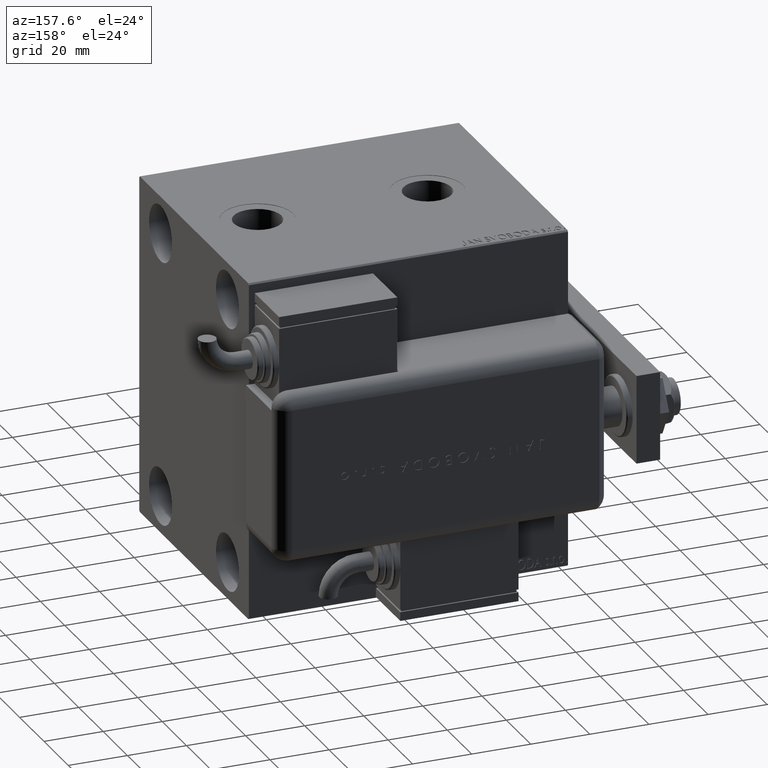
[diagram: clean part render]
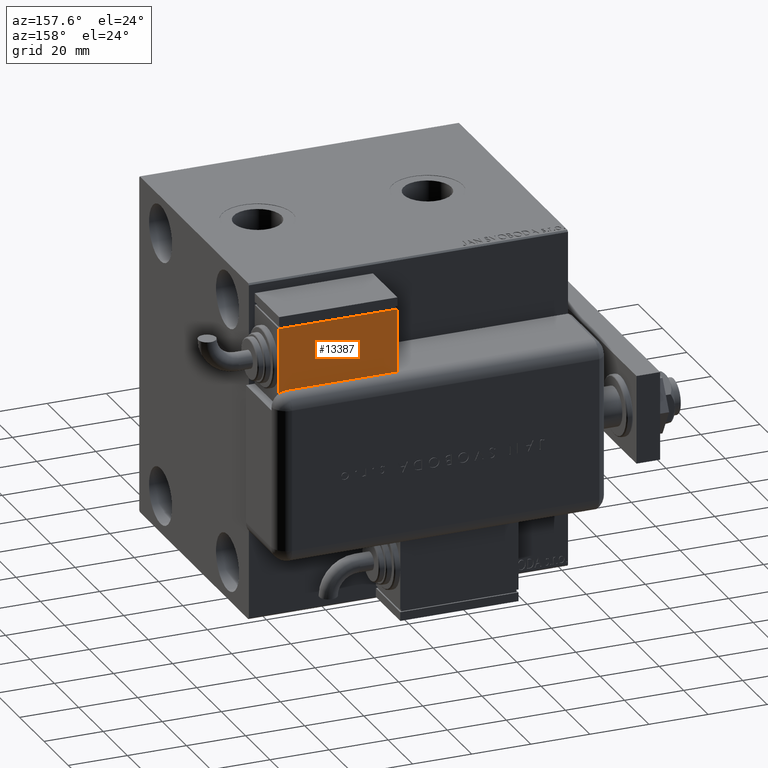
[diagram: same view with one face highlighted and labeled with its STEP entity id]
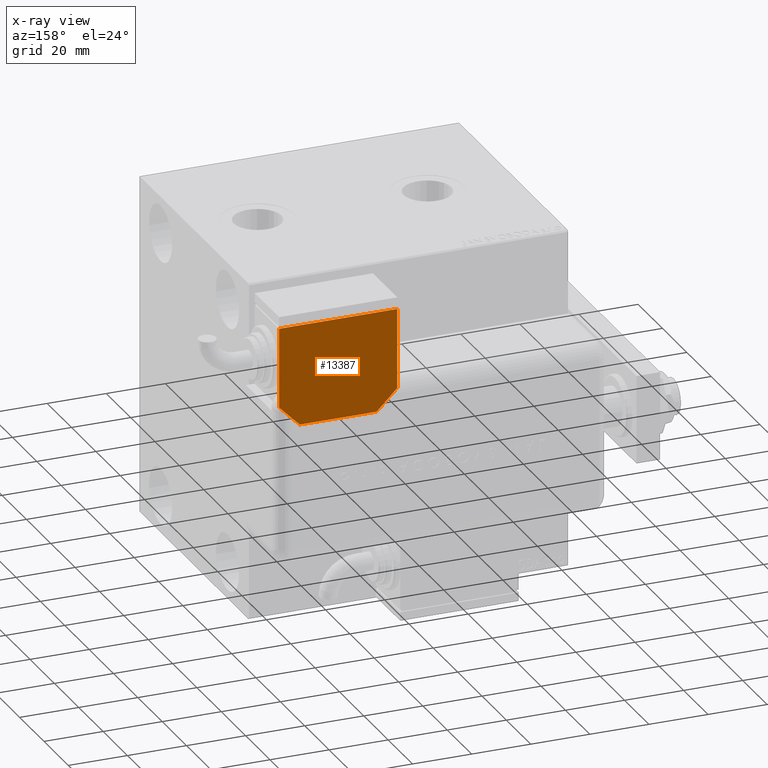
[diagram: x-ray of the same camera — body ghosted, the highlighted face saturated]
A machine part, auxiliary view. The second image highlights one B-rep face of the part: STEP entity #13387.
The next image is the same camera in x-ray: the body ghosted, the highlighted face saturated — about 0% of this face is hidden behind the body in this view.
In plain terms, the highlighted planar face has unit normal (0, -1, 0).
Its self-contained STEP definition (entity closure, byte-faithful):
#654 = DIRECTION ( 'NONE',  ( -1.284980352575421081E-16, -1.000000000000000000, -0.000000000000000000 ) ) ;
#937 = CARTESIAN_POINT ( 'NONE',  ( 20.00000000000005329, -13.49999999999996092, -10.00000000000000000 ) ) ;
#1556 = EDGE_CURVE ( 'NONE', #56026, #47607, #45192, .T. ) ;
#2547 = EDGE_LOOP ( 'NONE', ( #30021, #49237, #13089, #50019, #32039, #53984, #19502 ) ) ;
#4578 = DIRECTION ( 'NONE',  ( 1.284980352575412699E-16, 1.000000000000000000, 0.000000000000000000 ) ) ;
#7204 = DIRECTION ( 'NONE',  ( -0.7071067811865479058, 0.7071067811865470176, -0.000000000000000000 ) ) ;
#7552 = CARTESIAN_POINT ( 'NONE',  ( 0.000000000000000000, 0.000000000000000000, -10.00000000000000000 ) ) ;
#8514 = DIRECTION ( 'NONE',  ( 1.000000000000000000, 0.000000000000000000, 0.000000000000000000 ) ) ;
#9075 = VECTOR ( 'NONE', #7204, 1000.000000000000114 ) ;
#9314 = EDGE_CURVE ( 'NONE', #47607, #26504, #13357, .T. ) ;
#10399 = VERTEX_POINT ( 'NONE', #29045 ) ;
#11441 = CARTESIAN_POINT ( 'NONE',  ( 9.999999999999984013, 23.50000000000009592, -10.00000000000000000 ) ) ;
#11552 = DIRECTION ( 'NONE',  ( 1.000000000000000000, 0.000000000000000000, 0.000000000000000000 ) ) ;
#11794 = VECTOR ( 'NONE', #31265, 1000.000000000000000 ) ;
#13089 = ORIENTED_EDGE ( 'NONE', *, *, #42287, .F. ) ;
#13357 = LINE ( 'NONE', #32456, #11794 ) ;
#13387 = ADVANCED_FACE ( 'NONE', ( #36011 ), #58702, .F. ) ;
#13481 = VECTOR ( 'NONE', #4578, 1000.000000000000000 ) ;
#13958 = CARTESIAN_POINT ( 'NONE',  ( -19.99999999999993960, 13.49999999999986500, -10.00000000000000000 ) ) ;
#14555 = LINE ( 'NONE', #41053, #38911 ) ;
#15872 = CARTESIAN_POINT ( 'NONE',  ( 20.00000000000005329, -13.49999999999996092, -10.00000000000000000 ) ) ;
#19009 = VERTEX_POINT ( 'NONE', #15872 ) ;
#19502 = ORIENTED_EDGE ( 'NONE', *, *, #9314, .F. ) ;
#20467 = VECTOR ( 'NONE', #8514, 1000.000000000000000 ) ;
#23106 = CARTESIAN_POINT ( 'NONE',  ( 12.99999999999999112, 20.50000000000009592, -10.00000000000000000 ) ) ;
#23934 = LINE ( 'NONE', #937, #13481 ) ;
#24989 = VECTOR ( 'NONE', #11552, 1000.000000000000000 ) ;
#25842 = CARTESIAN_POINT ( 'NONE',  ( -19.99999999999993960, 13.49999999999986500, -10.00000000000000000 ) ) ;
#26504 = VERTEX_POINT ( 'NONE', #35419 ) ;
#27013 = DIRECTION ( 'NONE',  ( -0.7071067811865356934, -0.7071067811865593411, -0.000000000000000000 ) ) ;
#28814 = AXIS2_PLACEMENT_3D ( 'NONE', #7552, #30884, #53579 ) ;
#29045 = CARTESIAN_POINT ( 'NONE',  ( -19.99999999999994316, -13.49999999999996092, -10.00000000000000000 ) ) ;
#29928 = LINE ( 'NONE', #11441, #9075 ) ;
#30021 = ORIENTED_EDGE ( 'NONE', *, *, #1556, .F. ) ;
#30550 = VERTEX_POINT ( 'NONE', #23106 ) ;
#30884 = DIRECTION ( 'NONE',  ( 0.000000000000000000, 0.000000000000000000, 1.000000000000000000 ) ) ;
#31156 = LINE ( 'NONE', #45674, #24989 ) ;
#31265 = DIRECTION ( 'NONE',  ( -1.284980352575421081E-16, -1.000000000000000000, -0.000000000000000000 ) ) ;
#32039 = ORIENTED_EDGE ( 'NONE', *, *, #56389, .F. ) ;
#32456 = CARTESIAN_POINT ( 'NONE',  ( -19.99999999999994316, -13.49999999999996092, -10.00000000000000000 ) ) ;
#32843 = EDGE_CURVE ( 'NONE', #19009, #42015, #23934, .T. ) ;
#35419 = CARTESIAN_POINT ( 'NONE',  ( -19.99999999999993960, 2.569960705150834076E-15, -9.999999999999996447 ) ) ;
#36011 = FACE_OUTER_BOUND ( 'NONE', #2547, .T. ) ;
#36089 = CARTESIAN_POINT ( 'NONE',  ( 0.000000000000000000, 20.50000000000009592, -10.00000000000000000 ) ) ;
#37868 = EDGE_CURVE ( 'NONE', #56026, #30550, #54816, .T. ) ;
#38911 = VECTOR ( 'NONE', #654, 1000.000000000000000 ) ;
#39510 = EDGE_CURVE ( 'NONE', #26504, #10399, #14555, .T. ) ;
#41053 = CARTESIAN_POINT ( 'NONE',  ( -19.99999999999994316, -13.49999999999996092, -10.00000000000000000 ) ) ;
#42015 = VERTEX_POINT ( 'NONE', #45786 ) ;
#42287 = EDGE_CURVE ( 'NONE', #42015, #30550, #29928, .T. ) ;
#45192 = LINE ( 'NONE', #25842, #50817 ) ;
#45674 = CARTESIAN_POINT ( 'NONE',  ( -19.99999999999994316, -13.49999999999996092, -10.00000000000000000 ) ) ;
#45786 = CARTESIAN_POINT ( 'NONE',  ( 20.00000000000005684, 13.50000000000003730, -10.00000000000000000 ) ) ;
#47607 = VERTEX_POINT ( 'NONE', #13958 ) ;
#49237 = ORIENTED_EDGE ( 'NONE', *, *, #37868, .T. ) ;
#50019 = ORIENTED_EDGE ( 'NONE', *, *, #32843, .F. ) ;
#50817 = VECTOR ( 'NONE', #27013, 1000.000000000000000 ) ;
#53579 = DIRECTION ( 'NONE',  ( 1.000000000000000000, 0.000000000000000000, -0.000000000000000000 ) ) ;
#53984 = ORIENTED_EDGE ( 'NONE', *, *, #39510, .F. ) ;
#54816 = LINE ( 'NONE', #36089, #20467 ) ;
#56026 = VERTEX_POINT ( 'NONE', #58529 ) ;
#56389 = EDGE_CURVE ( 'NONE', #10399, #19009, #31156, .T. ) ;
#58529 = CARTESIAN_POINT ( 'NONE',  ( -12.99999999999994138, 20.50000000000009592, -10.00000000000000000 ) ) ;
#58702 = PLANE ( 'NONE',  #28814 ) ;